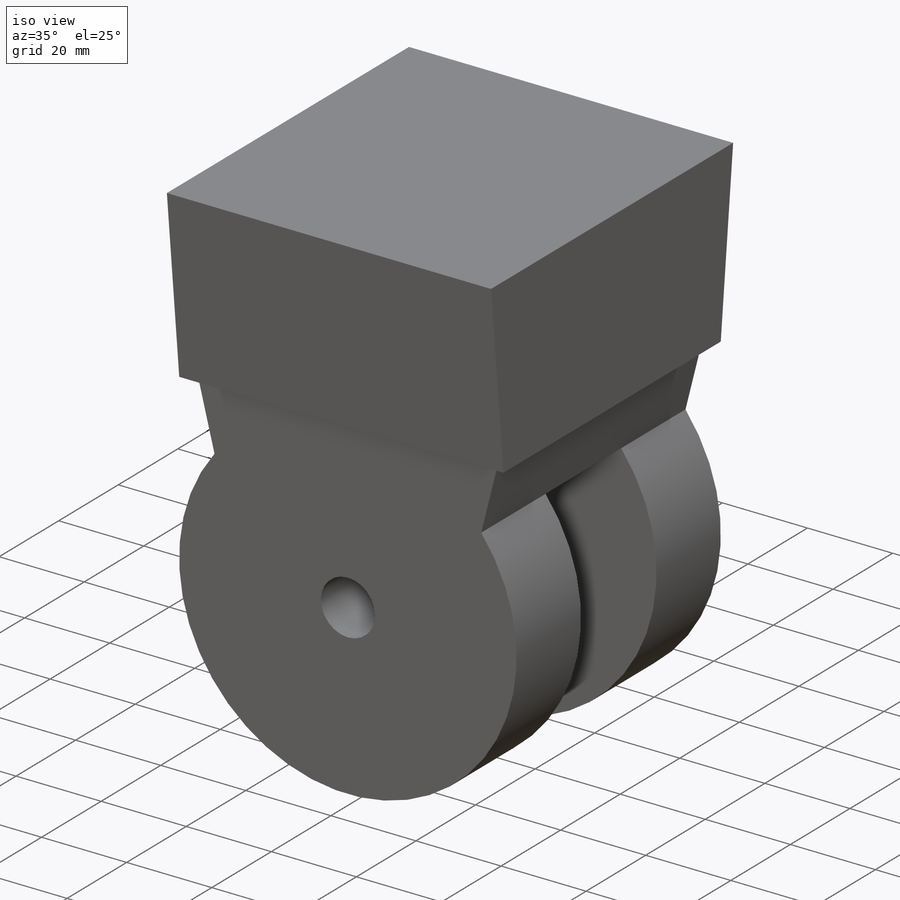
[diagram: iso view]
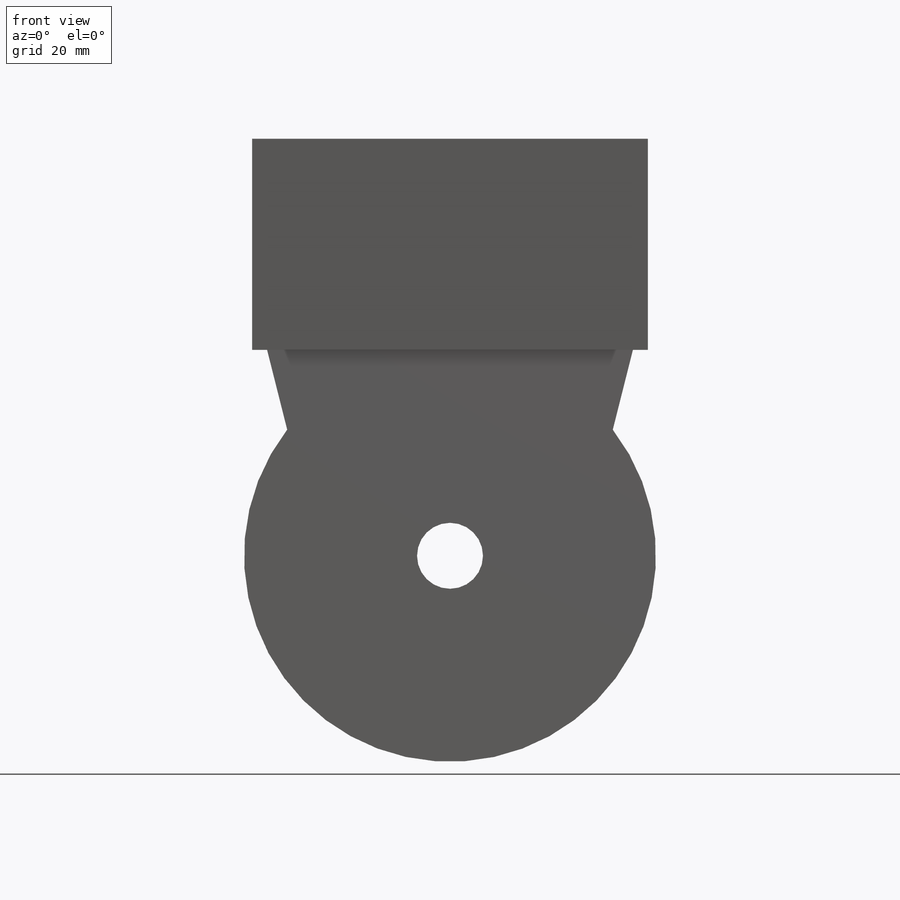
[diagram: front view]
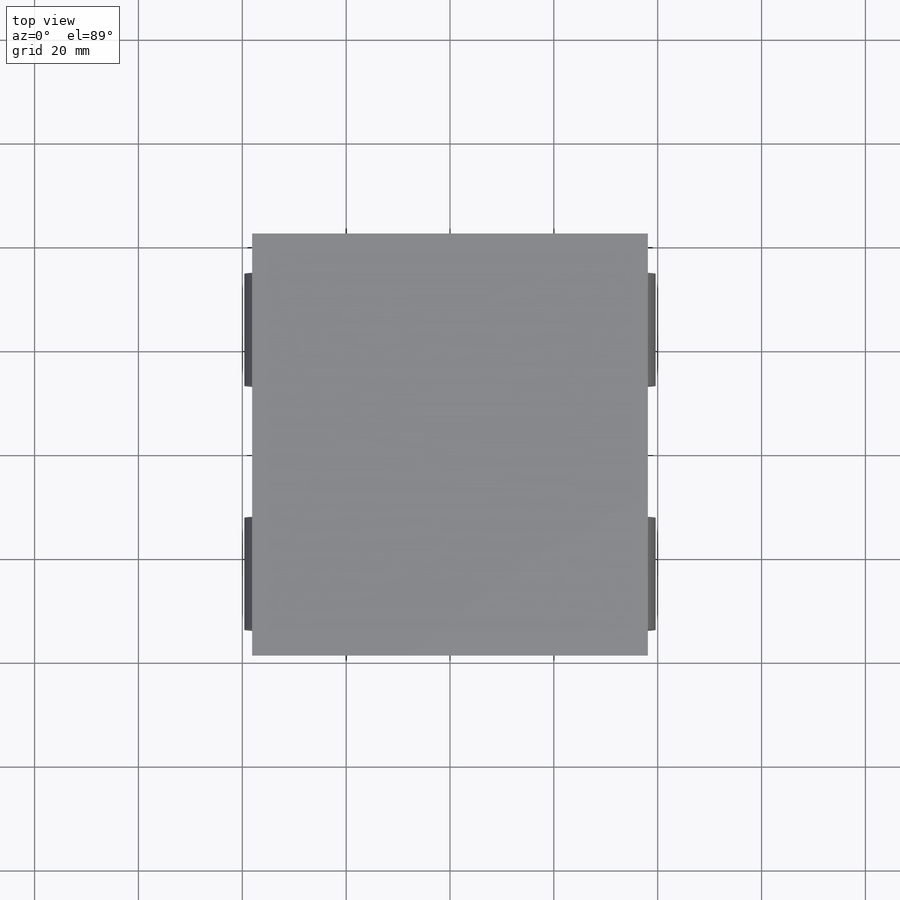
[diagram: top view]
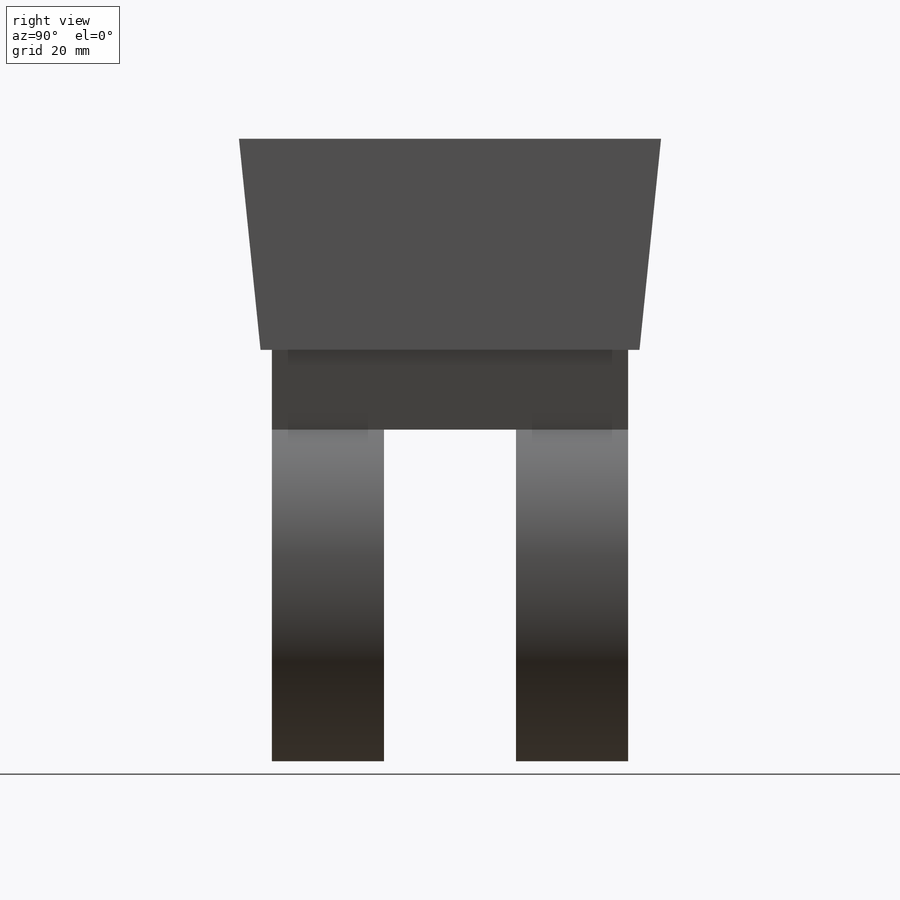
[diagram: right view]
SOLIDWORKS PART (.sldprt)
format: sldprt  version: not decoded by parser v0  size: 153,600 bytes
history: native  units: mm
features: sketch x5, plane x3, extrude x2, cut_extrude x2, material x1 (+8 scaffold rows collapsed)
feature tree (21):
  scaffold x8  (default folders/planes/origin — collapsed)
  material  "Material <sin especificar>"
  plane  "Alzado"
  plane  "Planta"
  plane  "Vista lateral"
  sketch  "Croquis1"
  extrude  "Saliente-Extruir1"  Depth=76.2mm
  sketch  "Croquis2"  dims[D1=12.7mm]
  extrude  "Saliente-Extruir2"  Depth=68.58mm
  sketch  "Croquis3"  dims[D1=~79.317516mm]
  cut_extrude  "Cortar-Extruir1"  Depth=25.4mm
  sketch  "Croquis4"  dims[D1=12.7mm]
  cut_extrude  "Cortar-Extruir2"  [1 undecoded]
  sketch  "Croquis8"  dims[D1=50.8mm]
decode coverage: 7 of 9 modeling features carry decoded parameters
note: ~ marks probable driven/reference dimensions
note: 1 parameter value undecoded
note: suppression state not decoded; provenance and decode notes live in map.json
